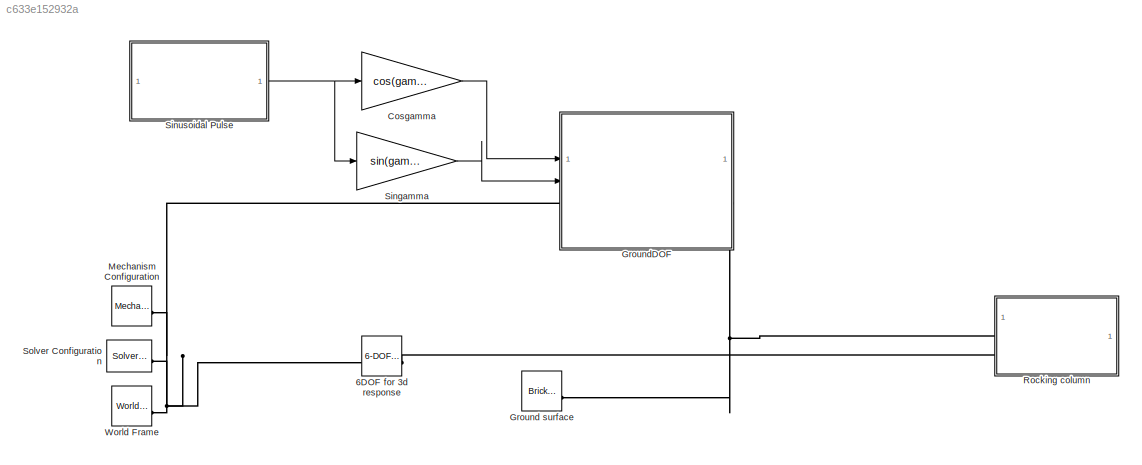
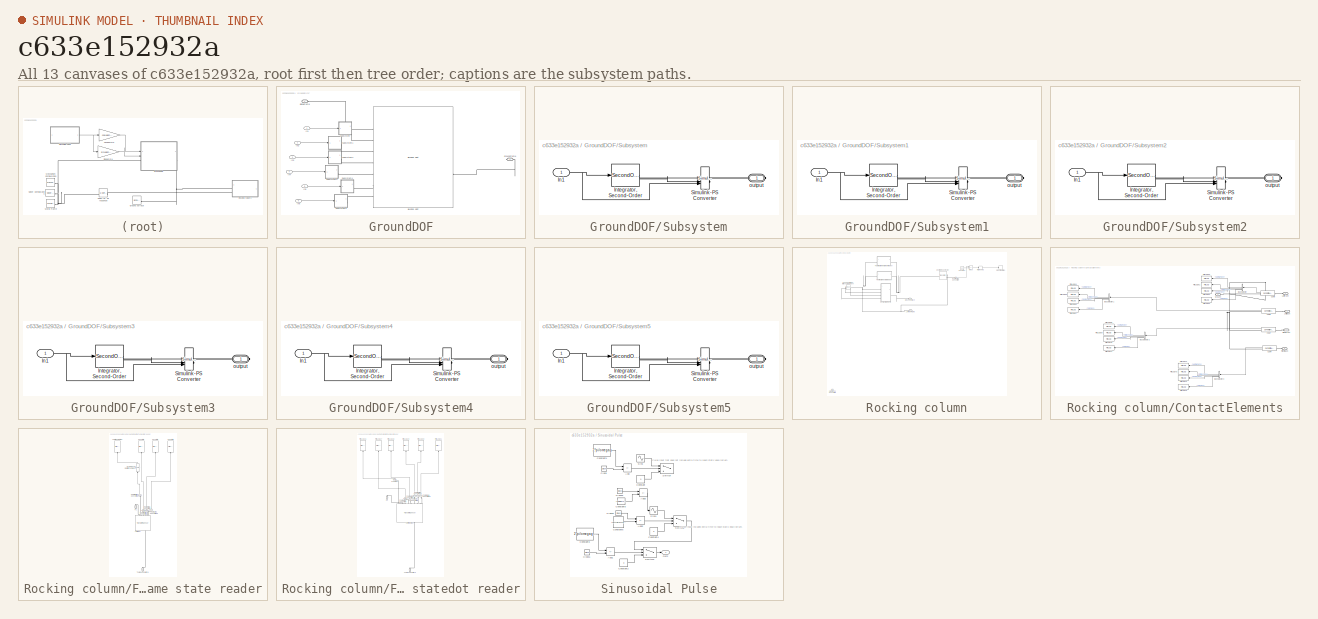
[diagram: thumbnail index - all 13 canvases of the model, root first then tree order]
MODEL slx_c633e152932a
KIND model
CONFIG AbsTol = absTol
CONFIG EnableMultiTasking = off
CONFIG FixedStep = auto
CONFIG MaxStep = auto
CONFIG MinStep = auto
CONFIG RelTol = relTol
CONFIG SampleTimeConstraint = Unconstrained
CONFIG SolverName = ode45
CONFIG StartTime = 0.0
CONFIG StopTime = t_end
BLOCK [Reference] 6DOF for 3d response  REF=sm_lib/Joints/6-DOF Joint
  SourceBlock = sm_lib/Joints/6-DOF Joint
  SourceType = 6-DOF Joint
BLOCK [Gain] Cosgamma
  Gain = cos(gamma)
BLOCK [Reference] Ground surface  REF=sm_lib/Body Elements/Brick Solid
  SourceBlock = sm_lib/Body Elements/Brick Solid
  SourceType = Brick Solid
BLOCK [SubSystem] GroundDOF
BLOCK [Reference] GroundDOF/Bushing Joint  REF=sm_lib/Joints/Bushing Joint
  SourceBlock = sm_lib/Joints/Bushing Joint
  SourceType = Bushing Joint
BLOCK [PMIOPort] GroundDOF/GlobalFrame
  Side = Left
BLOCK [PMIOPort] GroundDOF/GroundFrame
  Port = 2
  Side = Right
BLOCK [Inport] GroundDOF/In1
BLOCK [Inport] GroundDOF/In2
  Port = 2
BLOCK [Inport] GroundDOF/In3
  Port = 3
BLOCK [Inport] GroundDOF/In4
  Port = 4
BLOCK [Inport] GroundDOF/In5
  Port = 5
BLOCK [Inport] GroundDOF/In6
  Port = 6
BLOCK [SubSystem] GroundDOF/Subsystem
BLOCK [Inport] GroundDOF/Subsystem/In1
BLOCK [SecondOrderIntegrator] GroundDOF/Subsystem/Integrator, Second-Order
BLOCK [Reference] GroundDOF/Subsystem/Simulink-PS Converter  REF=nesl_utility/Simulink-PS
Converter
  SourceBlock = nesl_utility/Simulink-PS\nConverter
  SourceType = Simulink-PS\nConverter
BLOCK [PMIOPort] GroundDOF/Subsystem/output
  Side = Right
BLOCK [SubSystem] GroundDOF/Subsystem1
BLOCK [Inport] GroundDOF/Subsystem1/In1
BLOCK [SecondOrderIntegrator] GroundDOF/Subsystem1/Integrator, Second-Order
BLOCK [Reference] GroundDOF/Subsystem1/Simulink-PS Converter  REF=nesl_utility/Simulink-PS
Converter
  SourceBlock = nesl_utility/Simulink-PS\nConverter
  SourceType = Simulink-PS\nConverter
BLOCK [PMIOPort] GroundDOF/Subsystem1/output
  Side = Right
BLOCK [SubSystem] GroundDOF/Subsystem2
BLOCK [Inport] GroundDOF/Subsystem2/In1
BLOCK [SecondOrderIntegrator] GroundDOF/Subsystem2/Integrator, Second-Order
BLOCK [Reference] GroundDOF/Subsystem2/Simulink-PS Converter  REF=nesl_utility/Simulink-PS
Converter
  SourceBlock = nesl_utility/Simulink-PS\nConverter
  SourceType = Simulink-PS\nConverter
BLOCK [PMIOPort] GroundDOF/Subsystem2/output
  Side = Right
BLOCK [SubSystem] GroundDOF/Subsystem3
BLOCK [Inport] GroundDOF/Subsystem3/In1
BLOCK [SecondOrderIntegrator] GroundDOF/Subsystem3/Integrator, Second-Order
BLOCK [Reference] GroundDOF/Subsystem3/Simulink-PS Converter  REF=nesl_utility/Simulink-PS
Converter
  SourceBlock = nesl_utility/Simulink-PS\nConverter
  SourceType = Simulink-PS\nConverter
BLOCK [PMIOPort] GroundDOF/Subsystem3/output
  Side = Right
BLOCK [SubSystem] GroundDOF/Subsystem4
BLOCK [Inport] GroundDOF/Subsystem4/In1
BLOCK [SecondOrderIntegrator] GroundDOF/Subsystem4/Integrator, Second-Order
BLOCK [Reference] GroundDOF/Subsystem4/Simulink-PS Converter  REF=nesl_utility/Simulink-PS
Converter
  SourceBlock = nesl_utility/Simulink-PS\nConverter
  SourceType = Simulink-PS\nConverter
BLOCK [PMIOPort] GroundDOF/Subsystem4/output
  Side = Right
BLOCK [SubSystem] GroundDOF/Subsystem5
BLOCK [Inport] GroundDOF/Subsystem5/In1
BLOCK [SecondOrderIntegrator] GroundDOF/Subsystem5/Integrator, Second-Order
BLOCK [Reference] GroundDOF/Subsystem5/Simulink-PS Converter  REF=nesl_utility/Simulink-PS
Converter
  SourceBlock = nesl_utility/Simulink-PS\nConverter
  SourceType = Simulink-PS\nConverter
BLOCK [PMIOPort] GroundDOF/Subsystem5/output
  Side = Right
BLOCK [Reference] Mechanism Configuration  REF=sm_lib/Utilities/Mechanism
Configuration
  SourceBlock = sm_lib/Utilities/Mechanism\nConfiguration
  SourceType = Mechanism\nConfiguration
BLOCK [SubSystem] Rocking column
BLOCK [Constant] Rocking column/Constant
  Value = 0.12
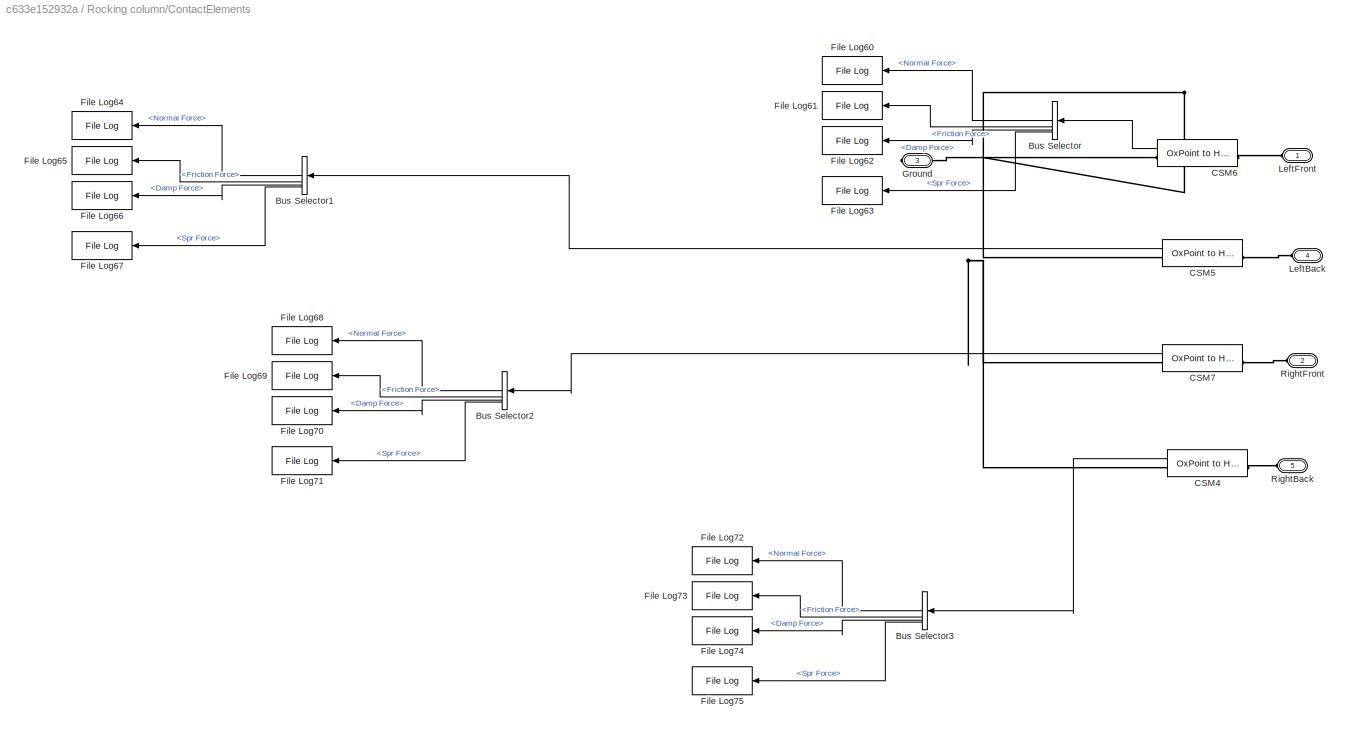
BLOCK [SubSystem] Rocking column/ContactElements
BLOCK [BusSelector] Rocking column/ContactElements/Bus Selector
  NameLocation = top
  OutputSignals = Normal Force,Friction Force,Damp Force,Spr Force
BLOCK [BusSelector] Rocking column/ContactElements/Bus Selector1
  NameLocation = top
  OutputSignals = Normal Force,Friction Force,Damp Force,Spr Force
BLOCK [BusSelector] Rocking column/ContactElements/Bus Selector2
  NameLocation = top
  OutputSignals = Normal Force,Friction Force,Damp Force,Spr Force
BLOCK [BusSelector] Rocking column/ContactElements/Bus Selector3
  NameLocation = top
  OutputSignals = Normal Force,Friction Force,Damp Force,Spr Force
BLOCK [Reference] Rocking column/ContactElements/CSM4  REF=OxDynamicsContact/OxPoint to Halfspace
  SourceBlock = OxDynamicsContact/OxPoint to Halfspace
  SourceType = Sphere to Plane Force
BLOCK [Reference] Rocking column/ContactElements/CSM5  REF=OxDynamicsContact/OxPoint to Halfspace
  SourceBlock = OxDynamicsContact/OxPoint to Halfspace
  SourceType = Sphere to Plane Force
BLOCK [Reference] Rocking column/ContactElements/CSM6  REF=OxDynamicsContact/OxPoint to Halfspace
  SourceBlock = OxDynamicsContact/OxPoint to Halfspace
  SourceType = Sphere to Plane Force
BLOCK [Reference] Rocking column/ContactElements/CSM7  REF=OxDynamicsContact/OxPoint to Halfspace
  SourceBlock = OxDynamicsContact/OxPoint to Halfspace
  SourceType = Sphere to Plane Force
BLOCK [Reference] Rocking column/ContactElements/File Log60  REF=slrealtimeloglib/File Log
  NameLocation = top
  SourceBlock = slrealtimeloglib/File Log
  SourceType = slrealtimeloggingblock
BLOCK [Reference] Rocking column/ContactElements/File Log61  REF=slrealtimeloglib/File Log
  NameLocation = top
  SourceBlock = slrealtimeloglib/File Log
  SourceType = slrealtimeloggingblock
BLOCK [Reference] Rocking column/ContactElements/File Log62  REF=slrealtimeloglib/File Log
  NameLocation = top
  SourceBlock = slrealtimeloglib/File Log
  SourceType = slrealtimeloggingblock
BLOCK [Reference] Rocking column/ContactElements/File Log63  REF=slrealtimeloglib/File Log
  NameLocation = top
  SourceBlock = slrealtimeloglib/File Log
  SourceType = slrealtimeloggingblock
BLOCK [Reference] Rocking column/ContactElements/File Log64  REF=slrealtimeloglib/File Log
  NameLocation = top
  SourceBlock = slrealtimeloglib/File Log
  SourceType = slrealtimeloggingblock
BLOCK [Reference] Rocking column/ContactElements/File Log65  REF=slrealtimeloglib/File Log
  NameLocation = top
  SourceBlock = slrealtimeloglib/File Log
  SourceType = slrealtimeloggingblock
BLOCK [Reference] Rocking column/ContactElements/File Log66  REF=slrealtimeloglib/File Log
  NameLocation = top
  SourceBlock = slrealtimeloglib/File Log
  SourceType = slrealtimeloggingblock
BLOCK [Reference] Rocking column/ContactElements/File Log67  REF=slrealtimeloglib/File Log
  NameLocation = top
  SourceBlock = slrealtimeloglib/File Log
  SourceType = slrealtimeloggingblock
BLOCK [Reference] Rocking column/ContactElements/File Log68  REF=slrealtimeloglib/File Log
  NameLocation = top
  SourceBlock = slrealtimeloglib/File Log
  SourceType = slrealtimeloggingblock
BLOCK [Reference] Rocking column/ContactElements/File Log69  REF=slrealtimeloglib/File Log
  NameLocation = top
  SourceBlock = slrealtimeloglib/File Log
  SourceType = slrealtimeloggingblock
BLOCK [Reference] Rocking column/ContactElements/File Log70  REF=slrealtimeloglib/File Log
  NameLocation = top
  SourceBlock = slrealtimeloglib/File Log
  SourceType = slrealtimeloggingblock
BLOCK [Reference] Rocking column/ContactElements/File Log71  REF=slrealtimeloglib/File Log
  NameLocation = top
  SourceBlock = slrealtimeloglib/File Log
  SourceType = slrealtimeloggingblock
BLOCK [Reference] Rocking column/ContactElements/File Log72  REF=slrealtimeloglib/File Log
  NameLocation = top
  SourceBlock = slrealtimeloglib/File Log
  SourceType = slrealtimeloggingblock
BLOCK [Reference] Rocking column/ContactElements/File Log73  REF=slrealtimeloglib/File Log
  NameLocation = top
  SourceBlock = slrealtimeloglib/File Log
  SourceType = slrealtimeloggingblock
BLOCK [Reference] Rocking column/ContactElements/File Log74  REF=slrealtimeloglib/File Log
  NameLocation = top
  SourceBlock = slrealtimeloglib/File Log
  SourceType = slrealtimeloggingblock
BLOCK [Reference] Rocking column/ContactElements/File Log75  REF=slrealtimeloglib/File Log
  NameLocation = top
  SourceBlock = slrealtimeloglib/File Log
  SourceType = slrealtimeloggingblock
BLOCK [PMIOPort] Rocking column/ContactElements/Ground
  Port = 3
  Side = Right
BLOCK [PMIOPort] Rocking column/ContactElements/LeftBack
  Port = 4
  Side = Left
BLOCK [PMIOPort] Rocking column/ContactElements/LeftFront
  Side = Left
BLOCK [PMIOPort] Rocking column/ContactElements/RightBack
  Port = 5
  Side = Left
BLOCK [PMIOPort] Rocking column/ContactElements/RightFront
  Port = 2
  Side = Left
BLOCK [SubSystem] Rocking column/Floating frame state reader
  NameLocation = top
BLOCK [Reference] Rocking column/Floating frame state reader/ LeftFront  REF=sm_lib/Frames and
Transforms/Transform
Sensor
  NameLocation = right
  SourceBlock = sm_lib/Frames and\nTransforms/Transform\nSensor
  SourceType = Transform\nSensor
BLOCK [PMIOPort] Rocking column/Floating frame state reader/F1
  NameLocation = right
  Port = 2
  Side = Right
BLOCK [Reference] Rocking column/Floating frame state reader/FF rational states  REF=slrealtimeloglib/File Log
  NameLocation = right
  SourceBlock = slrealtimeloglib/File Log
  SourceType = slrealtimeloggingblock
BLOCK [Reference] Rocking column/Floating frame state reader/FF x state  REF=slrealtimeloglib/File Log
  NameLocation = right
  SourceBlock = slrealtimeloglib/File Log
  SourceType = slrealtimeloggingblock
BLOCK [Reference] Rocking column/Floating frame state reader/FF y state  REF=slrealtimeloglib/File Log
  NameLocation = right
  SourceBlock = slrealtimeloglib/File Log
  SourceType = slrealtimeloggingblock
BLOCK [Reference] Rocking column/Floating frame state reader/FF z state  REF=slrealtimeloglib/File Log
  NameLocation = right
  SourceBlock = slrealtimeloglib/File Log
  SourceType = slrealtimeloggingblock
BLOCK [Reference] Rocking column/Floating frame state reader/PS-Simulink Converter1  REF=nesl_utility/PS-Simulink
Converter
  NameLocation = right
  SourceBlock = nesl_utility/PS-Simulink\nConverter
  SourceType = PS-Simulink\nConverter
BLOCK [Reference] Rocking column/Floating frame state reader/PS-Simulink Converter19  REF=nesl_utility/PS-Simulink
Converter
  NameLocation = right
  SourceBlock = nesl_utility/PS-Simulink\nConverter
  SourceType = PS-Simulink\nConverter
BLOCK [Reference] Rocking column/Floating frame state reader/PS-Simulink Converter5  REF=nesl_utility/PS-Simulink
Converter
  NameLocation = right
  SourceBlock = nesl_utility/PS-Simulink\nConverter
  SourceType = PS-Simulink\nConverter
BLOCK [Reference] Rocking column/Floating frame state reader/PS-Simulink Converter6  REF=nesl_utility/PS-Simulink
Converter
  NameLocation = right
  SourceBlock = nesl_utility/PS-Simulink\nConverter
  SourceType = PS-Simulink\nConverter
BLOCK [Reference] Rocking column/Floating frame state reader/Quaternions to Rotation Angles1  REF=sharedtransform/Quaternions to Rotation Angles
  AttributesFormatString = Rotation Order: %<rotationOrder>
  NameLocation = right
  SourceBlock = sharedtransform/Quaternions to Rotation Angles
  SourceType = Quat2Ang
BLOCK [PMIOPort] Rocking column/Floating frame state reader/ToGroundSurface
  NameLocation = right
  Side = Left
BLOCK [SubSystem] Rocking column/Floating frame statedot reader
  NameLocation = top
BLOCK [Reference] Rocking column/Floating frame statedot reader/ LeftFrontDot  REF=sm_lib/Frames and
Transforms/Transform
Sensor
  NameLocation = right
  SourceBlock = sm_lib/Frames and\nTransforms/Transform\nSensor
  SourceType = Transform\nSensor
BLOCK [PMIOPort] Rocking column/Floating frame statedot reader/F1
  NameLocation = right
  Port = 2
  Side = Right
BLOCK [Reference] Rocking column/Floating frame statedot reader/F1RotDot  REF=nesl_utility/PS-Simulink
Converter
  NameLocation = right
  SourceBlock = nesl_utility/PS-Simulink\nConverter
  SourceType = PS-Simulink\nConverter
BLOCK [Reference] Rocking column/Floating frame statedot reader/File Log16  REF=slrealtimeloglib/File Log
  NameLocation = right
  SourceBlock = slrealtimeloglib/File Log
  SourceType = slrealtimeloggingblock
BLOCK [Reference] Rocking column/Floating frame statedot reader/File Log17  REF=slrealtimeloglib/File Log
  NameLocation = right
  SourceBlock = slrealtimeloglib/File Log
  SourceType = slrealtimeloggingblock
BLOCK [Reference] Rocking column/Floating frame statedot reader/File Log18  REF=slrealtimeloglib/File Log
  NameLocation = right
  SourceBlock = slrealtimeloglib/File Log
  SourceType = slrealtimeloggingblock
BLOCK [Reference] Rocking column/Floating frame statedot reader/File Log19  REF=slrealtimeloglib/File Log
  NameLocation = right
  SourceBlock = slrealtimeloglib/File Log
  SourceType = slrealtimeloggingblock
BLOCK [Reference] Rocking column/Floating frame statedot reader/File Log20  REF=slrealtimeloglib/File Log
  NameLocation = right
  SourceBlock = slrealtimeloglib/File Log
  SourceType = slrealtimeloggingblock
BLOCK [Reference] Rocking column/Floating frame statedot reader/File Log21  REF=slrealtimeloglib/File Log
  NameLocation = right
  SourceBlock = slrealtimeloglib/File Log
  SourceType = slrealtimeloggingblock
BLOCK [Reference] Rocking column/Floating frame statedot reader/PS-Simulink Converter1  REF=nesl_utility/PS-Simulink
Converter
  NameLocation = right
  SourceBlock = nesl_utility/PS-Simulink\nConverter
  SourceType = PS-Simulink\nConverter
BLOCK [Reference] Rocking column/Floating frame statedot reader/PS-Simulink Converter19  REF=nesl_utility/PS-Simulink
Converter
  NameLocation = right
  SourceBlock = nesl_utility/PS-Simulink\nConverter
  SourceType = PS-Simulink\nConverter
BLOCK [Reference] Rocking column/Floating frame statedot reader/PS-Simulink Converter20  REF=nesl_utility/PS-Simulink
Converter
  NameLocation = right
  SourceBlock = nesl_utility/PS-Simulink\nConverter
  SourceType = PS-Simulink\nConverter
BLOCK [Reference] Rocking column/Floating frame statedot reader/PS-Simulink Converter5  REF=nesl_utility/PS-Simulink
Converter
  NameLocation = right
  SourceBlock = nesl_utility/PS-Simulink\nConverter
  SourceType = PS-Simulink\nConverter
BLOCK [Reference] Rocking column/Floating frame statedot reader/PS-Simulink Converter6  REF=nesl_utility/PS-Simulink
Converter
  NameLocation = right
  SourceBlock = nesl_utility/PS-Simulink\nConverter
  SourceType = PS-Simulink\nConverter
BLOCK [PMIOPort] Rocking column/Floating frame statedot reader/ToGroundSurface
  NameLocation = right
  Side = Left
BLOCK [PMIOPort] Rocking column/GroundSurface
  NameLocation = top
  Side = Left
BLOCK [HitCross] Rocking column/Hit Crossing
BLOCK [PMIOPort] Rocking column/LeftFrontFrame
  NameLocation = top
  Port = 2
  Side = Left
BLOCK [Sum] Rocking column/Minus
  IconShape = rectangular
  Inputs = +-
BLOCK [Reference] Rocking column/Overturning detector  REF=sm_lib/Frames and
Transforms/Transform
Sensor
  SourceBlock = sm_lib/Frames and\nTransforms/Transform\nSensor
  SourceType = Transform\nSensor
BLOCK [Reference] Rocking column/PS-Simulink Converter7  REF=nesl_utility/PS-Simulink
Converter
  SourceBlock = nesl_utility/PS-Simulink\nConverter
  SourceType = PS-Simulink\nConverter
BLOCK [Reference] Rocking column/Pesdo-Full order tetrahedral element  REF=sm_lib/Body Elements/Flexible Bodies/Reduced Order
Flexible Solid
  NameLocation = top
  SourceBlock = sm_lib/Body Elements/Flexible Bodies/Reduced Order\nFlexible Solid
  SourceType = Reduced Order\nFlexible Solid
BLOCK [Reference] Rocking column/Simulink-PS Converter6  REF=nesl_utility/Simulink-PS
Converter
  Commented = on
  SourceBlock = nesl_utility/Simulink-PS\nConverter
  SourceType = Simulink-PS\nConverter
BLOCK [Stop] Rocking column/Stop Simulation
BLOCK [Gain] Singamma
  Gain = sin(gamma)
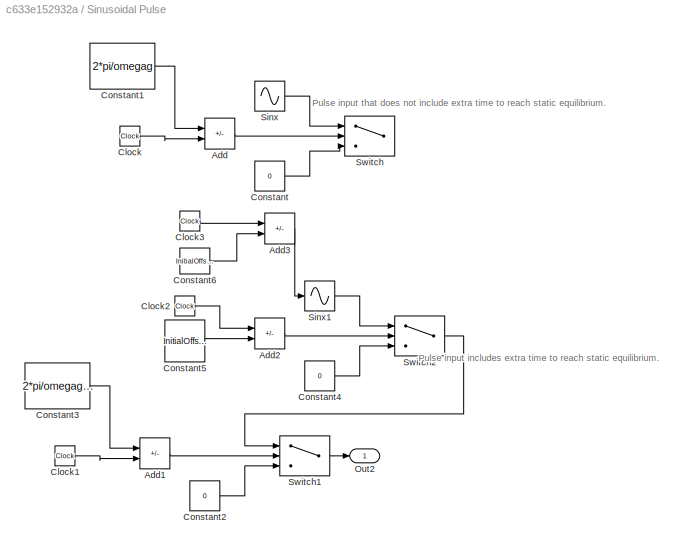
BLOCK [SubSystem] Sinusoidal Pulse
BLOCK [Sum] Sinusoidal Pulse/Add
  Commented = on
  IconShape = rectangular
  Inputs = +-
BLOCK [Sum] Sinusoidal Pulse/Add1
  IconShape = rectangular
  Inputs = +-
BLOCK [Sum] Sinusoidal Pulse/Add2
  IconShape = rectangular
  Inputs = +-
BLOCK [Sum] Sinusoidal Pulse/Add3
  IconShape = rectangular
  Inputs = +-
BLOCK [Clock] Sinusoidal Pulse/Clock
  Commented = on
BLOCK [Clock] Sinusoidal Pulse/Clock1
BLOCK [Clock] Sinusoidal Pulse/Clock2
BLOCK [Clock] Sinusoidal Pulse/Clock3
BLOCK [Constant] Sinusoidal Pulse/Constant
  Commented = on
  Value = 0
BLOCK [Constant] Sinusoidal Pulse/Constant1
  Commented = on
  Value = 2*pi/omegag
BLOCK [Constant] Sinusoidal Pulse/Constant2
  Value = 0
BLOCK [Constant] Sinusoidal Pulse/Constant3
  Value = 2*pi/omegag+InitialOffset
BLOCK [Constant] Sinusoidal Pulse/Constant4
  Value = 0
BLOCK [Constant] Sinusoidal Pulse/Constant5
  Value = InitialOffset
BLOCK [Constant] Sinusoidal Pulse/Constant6
  Value = InitialOffset
BLOCK [Outport] Sinusoidal Pulse/Out2
BLOCK [Sin] Sinusoidal Pulse/Sinx
  Amplitude = Ag
  Commented = on
  Frequency = omegag
  SampleTime = 0
BLOCK [Sin] Sinusoidal Pulse/Sinx1
  Amplitude = Ag
  Frequency = omegag
  SampleTime = 0
  TimeSource = Use external signal
BLOCK [Switch] Sinusoidal Pulse/Switch
  Commented = on
  Criteria = u2 > Threshold
  InputSameDT = off
  SaturateOnIntegerOverflow = off
BLOCK [Switch] Sinusoidal Pulse/Switch1
  Criteria = u2 > Threshold
  InputSameDT = off
  SaturateOnIntegerOverflow = off
BLOCK [Switch] Sinusoidal Pulse/Switch2
  Criteria = u2 > Threshold
  InputSameDT = off
  SaturateOnIntegerOverflow = off
BLOCK [Reference] Solver Configuration  REF=nesl_utility/Solver
Configuration
  SourceBlock = nesl_utility/Solver\nConfiguration
  SourceType = Solver\nConfiguration
BLOCK [Reference] World Frame  REF=sm_lib/Frames and
Transforms/World Frame
  SourceBlock = sm_lib/Frames and\nTransforms/World Frame
  SourceType = World Frame
ANNOTATION Sinusoidal Pulse: Pulse input includes extra time to reach static equilibrium.
ANNOTATION Sinusoidal Pulse: Pulse input that does not include extra time to reach static equilibrium.
LINE Cosgamma:1 -> GroundDOF:1
LINE GroundDOF/In1:1 -> GroundDOF/Subsystem:1
LINE GroundDOF/In2:1 -> GroundDOF/Subsystem1:1
LINE GroundDOF/In3:1 -> GroundDOF/Subsystem2:1
LINE GroundDOF/In4:1 -> GroundDOF/Subsystem3:1
LINE GroundDOF/In5:1 -> GroundDOF/Subsystem4:1
LINE GroundDOF/In6:1 -> GroundDOF/Subsystem5:1
NET GroundDOF/Subsystem/In1:1 -> GroundDOF/Subsystem/Integrator, Second-Order:1, GroundDOF/Subsystem/Simulink-PS Converter:3
LINE GroundDOF/Subsystem/Integrator, Second-Order:1 -> GroundDOF/Subsystem/Simulink-PS Converter:1
LINE GroundDOF/Subsystem/Integrator, Second-Order:2 -> GroundDOF/Subsystem/Simulink-PS Converter:2
NET GroundDOF/Subsystem1/In1:1 -> GroundDOF/Subsystem1/Integrator, Second-Order:1, GroundDOF/Subsystem1/Simulink-PS Converter:3
LINE GroundDOF/Subsystem1/Integrator, Second-Order:1 -> GroundDOF/Subsystem1/Simulink-PS Converter:1
LINE GroundDOF/Subsystem1/Integrator, Second-Order:2 -> GroundDOF/Subsystem1/Simulink-PS Converter:2
NET GroundDOF/Subsystem2/In1:1 -> GroundDOF/Subsystem2/Integrator, Second-Order:1, GroundDOF/Subsystem2/Simulink-PS Converter:3
LINE GroundDOF/Subsystem2/Integrator, Second-Order:1 -> GroundDOF/Subsystem2/Simulink-PS Converter:1
LINE GroundDOF/Subsystem2/Integrator, Second-Order:2 -> GroundDOF/Subsystem2/Simulink-PS Converter:2
NET GroundDOF/Subsystem3/In1:1 -> GroundDOF/Subsystem3/Integrator, Second-Order:1, GroundDOF/Subsystem3/Simulink-PS Converter:3
LINE GroundDOF/Subsystem3/Integrator, Second-Order:1 -> GroundDOF/Subsystem3/Simulink-PS Converter:1
LINE GroundDOF/Subsystem3/Integrator, Second-Order:2 -> GroundDOF/Subsystem3/Simulink-PS Converter:2
NET GroundDOF/Subsystem4/In1:1 -> GroundDOF/Subsystem4/Integrator, Second-Order:1, GroundDOF/Subsystem4/Simulink-PS Converter:3
LINE GroundDOF/Subsystem4/Integrator, Second-Order:1 -> GroundDOF/Subsystem4/Simulink-PS Converter:1
LINE GroundDOF/Subsystem4/Integrator, Second-Order:2 -> GroundDOF/Subsystem4/Simulink-PS Converter:2
NET GroundDOF/Subsystem5/In1:1 -> GroundDOF/Subsystem5/Integrator, Second-Order:1, GroundDOF/Subsystem5/Simulink-PS Converter:3
LINE GroundDOF/Subsystem5/Integrator, Second-Order:1 -> GroundDOF/Subsystem5/Simulink-PS Converter:1
LINE GroundDOF/Subsystem5/Integrator, Second-Order:2 -> GroundDOF/Subsystem5/Simulink-PS Converter:2
LINE Rocking column/Constant:1 -> Rocking column/Minus:2
LINE Rocking column/ContactElements/Bus Selector1:1 -> Rocking column/ContactElements/File Log64:1
LINE Rocking column/ContactElements/Bus Selector1:2 -> Rocking column/ContactElements/File Log65:1
LINE Rocking column/ContactElements/Bus Selector1:3 -> Rocking column/ContactElements/File Log66:1
LINE Rocking column/ContactElements/Bus Selector1:4 -> Rocking column/ContactElements/File Log67:1
LINE Rocking column/ContactElements/Bus Selector2:1 -> Rocking column/ContactElements/File Log68:1
LINE Rocking column/ContactElements/Bus Selector2:2 -> Rocking column/ContactElements/File Log69:1
LINE Rocking column/ContactElements/Bus Selector2:3 -> Rocking column/ContactElements/File Log70:1
LINE Rocking column/ContactElements/Bus Selector2:4 -> Rocking column/ContactElements/File Log71:1
LINE Rocking column/ContactElements/Bus Selector3:1 -> Rocking column/ContactElements/File Log72:1
LINE Rocking column/ContactElements/Bus Selector3:2 -> Rocking column/ContactElements/File Log73:1
LINE Rocking column/ContactElements/Bus Selector3:3 -> Rocking column/ContactElements/File Log74:1
LINE Rocking column/ContactElements/Bus Selector3:4 -> Rocking column/ContactElements/File Log75:1
LINE Rocking column/ContactElements/Bus Selector:1 -> Rocking column/ContactElements/File Log60:1
LINE Rocking column/ContactElements/Bus Selector:2 -> Rocking column/ContactElements/File Log61:1
LINE Rocking column/ContactElements/Bus Selector:3 -> Rocking column/ContactElements/File Log62:1
LINE Rocking column/ContactElements/Bus Selector:4 -> Rocking column/ContactElements/File Log63:1
LINE Rocking column/ContactElements/CSM4:1 -> Rocking column/ContactElements/Bus Selector3:1
LINE Rocking column/ContactElements/CSM5:1 -> Rocking column/ContactElements/Bus Selector1:1
LINE Rocking column/ContactElements/CSM6:1 -> Rocking column/ContactElements/Bus Selector:1
LINE Rocking column/ContactElements/CSM7:1 -> Rocking column/ContactElements/Bus Selector2:1
LINE Rocking column/Floating frame state reader/PS-Simulink Converter19:1 -> Rocking column/Floating frame state reader/FF z state:1
LINE Rocking column/Floating frame state reader/PS-Simulink Converter1:1 -> Rocking column/Floating frame state reader/FF y state:1
LINE Rocking column/Floating frame state reader/PS-Simulink Converter5:1 -> Rocking column/Floating frame state reader/FF x state:1
LINE Rocking column/Floating frame state reader/PS-Simulink Converter6:1 -> Rocking column/Floating frame state reader/Quaternions to Rotation Angles1:1
LINE Rocking column/Floating frame state reader/Quaternions to Rotation Angles1:1 -> Rocking column/Floating frame state reader/FF rational states:1
LINE Rocking column/Floating frame statedot reader/F1RotDot:1 -> Rocking column/Floating frame statedot reader/File Log16:1
LINE Rocking column/Floating frame statedot reader/PS-Simulink Converter19:1 -> Rocking column/Floating frame statedot reader/File Log20:1
LINE Rocking column/Floating frame statedot reader/PS-Simulink Converter1:1 -> Rocking column/Floating frame statedot reader/File Log18:1
LINE Rocking column/Floating frame statedot reader/PS-Simulink Converter20:1 -> Rocking column/Floating frame statedot reader/File Log21:1
LINE Rocking column/Floating frame statedot reader/PS-Simulink Converter5:1 -> Rocking column/Floating frame statedot reader/File Log17:1
LINE Rocking column/Floating frame statedot reader/PS-Simulink Converter6:1 -> Rocking column/Floating frame statedot reader/File Log19:1
LINE Rocking column/Hit Crossing:1 -> Rocking column/Stop Simulation:1
LINE Rocking column/Minus:1 -> Rocking column/Hit Crossing:1
LINE Rocking column/PS-Simulink Converter7:1 -> Rocking column/Minus:1
LINE Singamma:1 -> GroundDOF:2
LINE Sinusoidal Pulse/Add1:1 -> Sinusoidal Pulse/Switch1:2
LINE Sinusoidal Pulse/Add2:1 -> Sinusoidal Pulse/Switch2:2
LINE Sinusoidal Pulse/Add3:1 -> Sinusoidal Pulse/Sinx1:1
LINE Sinusoidal Pulse/Add:1 -> Sinusoidal Pulse/Switch:2
LINE Sinusoidal Pulse/Clock1:1 -> Sinusoidal Pulse/Add1:2
LINE Sinusoidal Pulse/Clock2:1 -> Sinusoidal Pulse/Add2:1
LINE Sinusoidal Pulse/Clock3:1 -> Sinusoidal Pulse/Add3:1
LINE Sinusoidal Pulse/Clock:1 -> Sinusoidal Pulse/Add:2
LINE Sinusoidal Pulse/Constant1:1 -> Sinusoidal Pulse/Add:1
LINE Sinusoidal Pulse/Constant2:1 -> Sinusoidal Pulse/Switch1:3
LINE Sinusoidal Pulse/Constant3:1 -> Sinusoidal Pulse/Add1:1
LINE Sinusoidal Pulse/Constant4:1 -> Sinusoidal Pulse/Switch2:3
LINE Sinusoidal Pulse/Constant5:1 -> Sinusoidal Pulse/Add2:2
LINE Sinusoidal Pulse/Constant6:1 -> Sinusoidal Pulse/Add3:2
LINE Sinusoidal Pulse/Constant:1 -> Sinusoidal Pulse/Switch:3
LINE Sinusoidal Pulse/Sinx1:1 -> Sinusoidal Pulse/Switch2:1
LINE Sinusoidal Pulse/Sinx:1 -> Sinusoidal Pulse/Switch:1
LINE Sinusoidal Pulse/Switch1:1 -> Sinusoidal Pulse/Out2:1
LINE Sinusoidal Pulse/Switch2:1 -> Sinusoidal Pulse/Switch1:1
NET Sinusoidal Pulse:1 -> Cosgamma:1, Singamma:1
PNET net1: 6DOF for 3d response:LConn1 -- GroundDOF:LConn1 -- Mechanism Configuration:RConn1 -- Solver Configuration:RConn1 -- World Frame:RConn1
PLINE 6DOF for 3d response:RConn1 -- Rocking column:LConn2
PNET net2: Ground surface:RConn1 -- GroundDOF:RConn1 -- Rocking column:LConn1
PLINE GroundDOF/Bushing Joint:LConn1 -- GroundDOF/GlobalFrame:RConn1
PLINE GroundDOF/Bushing Joint:LConn2 -- GroundDOF/Subsystem:RConn1
PLINE GroundDOF/Bushing Joint:LConn3 -- GroundDOF/Subsystem1:RConn1
PLINE GroundDOF/Bushing Joint:LConn4 -- GroundDOF/Subsystem2:RConn1
PLINE GroundDOF/Bushing Joint:LConn5 -- GroundDOF/Subsystem3:RConn1
PLINE GroundDOF/Bushing Joint:LConn6 -- GroundDOF/Subsystem4:RConn1
PLINE GroundDOF/Bushing Joint:LConn7 -- GroundDOF/Subsystem5:RConn1
PLINE GroundDOF/Bushing Joint:RConn1 -- GroundDOF/GroundFrame:RConn1
PLINE GroundDOF/Subsystem/Simulink-PS Converter:RConn1 -- GroundDOF/Subsystem/output:RConn1
PLINE GroundDOF/Subsystem1/Simulink-PS Converter:RConn1 -- GroundDOF/Subsystem1/output:RConn1
PLINE GroundDOF/Subsystem2/Simulink-PS Converter:RConn1 -- GroundDOF/Subsystem2/output:RConn1
PLINE GroundDOF/Subsystem3/Simulink-PS Converter:RConn1 -- GroundDOF/Subsystem3/output:RConn1
PLINE GroundDOF/Subsystem4/Simulink-PS Converter:RConn1 -- GroundDOF/Subsystem4/output:RConn1
PLINE GroundDOF/Subsystem5/Simulink-PS Converter:RConn1 -- GroundDOF/Subsystem5/output:RConn1
PLINE Rocking column/ContactElements/CSM4:LConn1 -- Rocking column/ContactElements/RightBack:RConn1
PNET net3: Rocking column/ContactElements/CSM4:RConn1 -- Rocking column/ContactElements/CSM5:RConn1 -- Rocking column/ContactElements/CSM6:RConn1 -- Rocking column/ContactElements/CSM7:RConn1 -- Rocking column/ContactElements/Ground:RConn1
PLINE Rocking column/ContactElements/CSM5:LConn1 -- Rocking column/ContactElements/LeftBack:RConn1
PLINE Rocking column/ContactElements/CSM6:LConn1 -- Rocking column/ContactElements/LeftFront:RConn1
PLINE Rocking column/ContactElements/CSM7:LConn1 -- Rocking column/ContactElements/RightFront:RConn1
PNET net4: Rocking column/ContactElements:LConn1 -- Rocking column/Floating frame state reader:RConn1 -- Rocking column/Floating frame statedot reader:RConn1 -- Rocking column/LeftFrontFrame:RConn1 -- Rocking column/Overturning detector:RConn1 -- Rocking column/Pesdo-Full order tetrahedral element:LConn1
PLINE Rocking column/ContactElements:LConn2 -- Rocking column/Pesdo-Full order tetrahedral element:RConn1
PLINE Rocking column/ContactElements:LConn3 -- Rocking column/Pesdo-Full order tetrahedral element:LConn2
PLINE Rocking column/ContactElements:LConn4 -- Rocking column/Pesdo-Full order tetrahedral element:RConn2
PNET net5: Rocking column/ContactElements:RConn1 -- Rocking column/Floating frame state reader:LConn1 -- Rocking column/Floating frame statedot reader:LConn1 -- Rocking column/GroundSurface:RConn1 -- Rocking column/Overturning detector:LConn1
PLINE Rocking column/Floating frame state reader/ LeftFront:LConn1 -- Rocking column/Floating frame state reader/ToGroundSurface:RConn1
PLINE Rocking column/Floating frame state reader/ LeftFront:RConn1 -- Rocking column/Floating frame state reader/F1:RConn1
PLINE Rocking column/Floating frame state reader/ LeftFront:RConn2 -- Rocking column/Floating frame state reader/PS-Simulink Converter6:LConn1
PLINE Rocking column/Floating frame state reader/ LeftFront:RConn3 -- Rocking column/Floating frame state reader/PS-Simulink Converter5:LConn1
PLINE Rocking column/Floating frame state reader/ LeftFront:RConn4 -- Rocking column/Floating frame state reader/PS-Simulink Converter1:LConn1
PLINE Rocking column/Floating frame state reader/ LeftFront:RConn5 -- Rocking column/Floating frame state reader/PS-Simulink Converter19:LConn1
PLINE Rocking column/Floating frame statedot reader/ LeftFrontDot:LConn1 -- Rocking column/Floating frame statedot reader/ToGroundSurface:RConn1
PLINE Rocking column/Floating frame statedot reader/ LeftFrontDot:RConn1 -- Rocking column/Floating frame statedot reader/F1:RConn1
PLINE Rocking column/Floating frame statedot reader/ LeftFrontDot:RConn2 -- Rocking column/Floating frame statedot reader/F1RotDot:LConn1
PLINE Rocking column/Floating frame statedot reader/ LeftFrontDot:RConn3 -- Rocking column/Floating frame statedot reader/PS-Simulink Converter5:LConn1
PLINE Rocking column/Floating frame statedot reader/ LeftFrontDot:RConn4 -- Rocking column/Floating frame statedot reader/PS-Simulink Converter1:LConn1
PLINE Rocking column/Floating frame statedot reader/ LeftFrontDot:RConn5 -- Rocking column/Floating frame statedot reader/PS-Simulink Converter6:LConn1
PLINE Rocking column/Floating frame statedot reader/ LeftFrontDot:RConn6 -- Rocking column/Floating frame statedot reader/PS-Simulink Converter19:LConn1
PLINE Rocking column/Floating frame statedot reader/ LeftFrontDot:RConn7 -- Rocking column/Floating frame statedot reader/PS-Simulink Converter20:LConn1
PLINE Rocking column/Overturning detector:RConn2 -- Rocking column/PS-Simulink Converter7:LConn1
note: NET lines group one-source signal fan-out (src -> all destinations, sorted); 1:1 wires keep LINE; PNET lines group multi-terminal physical nets as a canonical sorted terminal list (undirected conserving connections); 2-terminal nets keep the pairwise PLINE form
